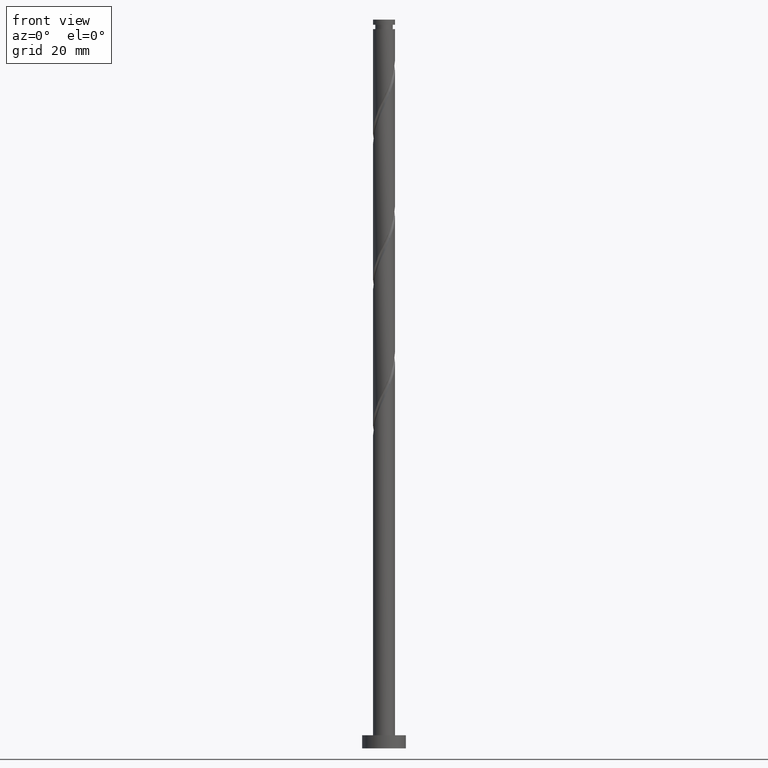
[diagram: clean part render]
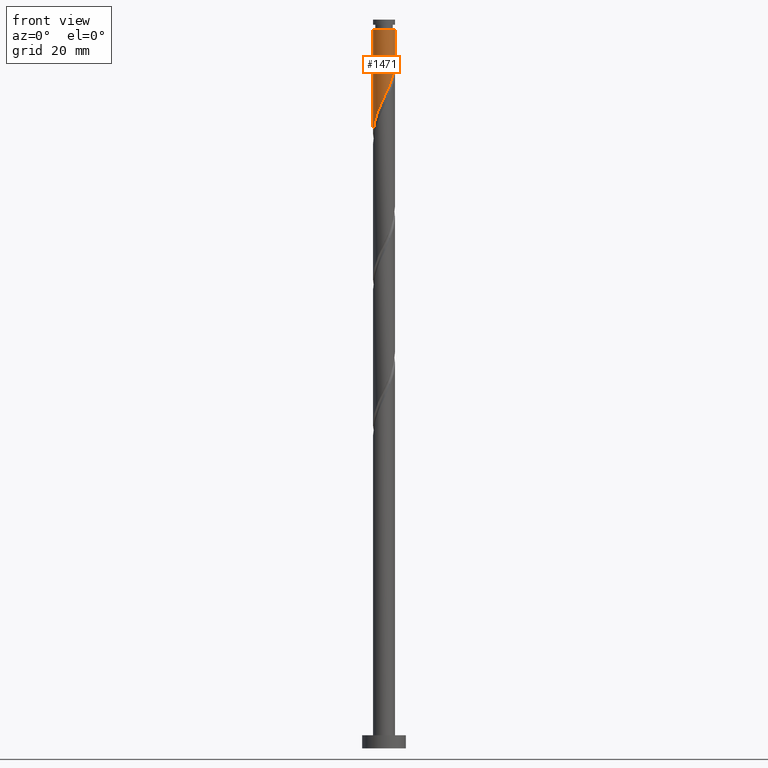
[diagram: same view with one face highlighted and labeled with its STEP entity id]
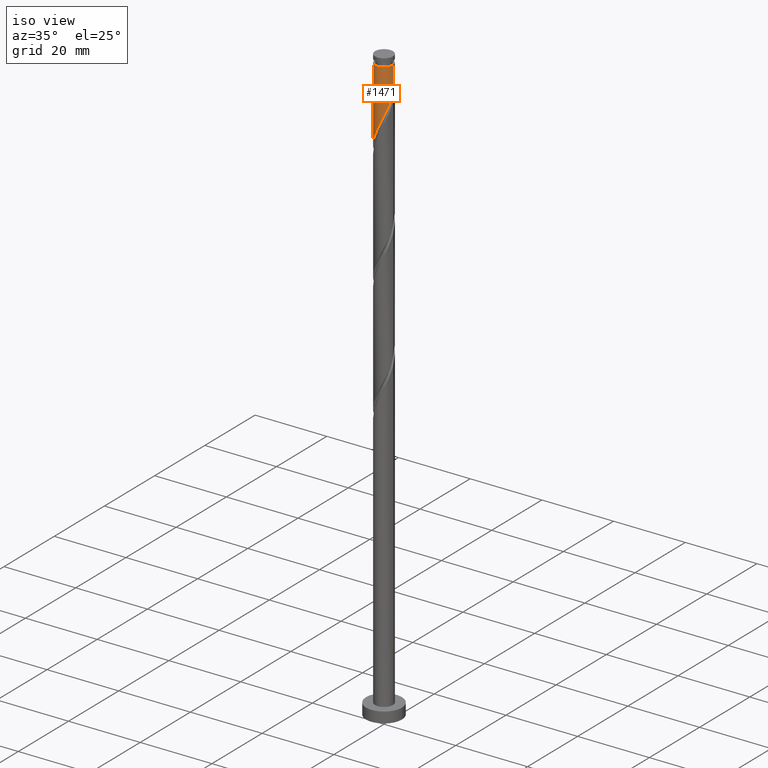
[diagram: same view with one face highlighted and labeled with its STEP entity id]
A machine part, front view. The second image highlights one B-rep face of the part: STEP entity #1471.
A second angle (iso view) of the same face is appended — the face is thin or edge-on in the first view.
In plain terms, the highlighted cylindrical surface (edge-blend (fillet) strip) has radius 2.5 mm, axis along (-0, -0, -1).
Its self-contained STEP definition (entity closure, byte-faithful):
#91 = DIRECTION ( 'NONE',  ( -0.000000000000000000, -0.000000000000000000, -1.000000000000000000 ) ) ;
#101 = CARTESIAN_POINT ( 'NONE',  ( -1.655842198490352413, -1.873015379995219165, 144.8865111185619980 ) ) ;
#120 = CARTESIAN_POINT ( 'NONE',  ( -0.1749450994641909840, -2.515496290581584304, 148.3587333407842834 ) ) ;
#140 = VECTOR ( 'NONE', #1259, 1000.000000000000000 ) ;
#241 = CARTESIAN_POINT ( 'NONE',  ( 2.500000000000000888, -0.2512594538148008039, 156.5277625156939791 ) ) ;
#253 = CARTESIAN_POINT ( 'NONE',  ( 2.091011141037078858, -1.409255045694377539, 153.9142888963398548 ) ) ;
#316 = LINE ( 'NONE', #837, #140 ) ;
#381 = CARTESIAN_POINT ( 'NONE',  ( -2.495279123588685977, -0.1535646293339484048, 140.7198444518953124 ) ) ;
#418 =( BOUNDED_CURVE ( )  B_SPLINE_CURVE ( 2, ( #1172, #241, #627, #1049, #1602, #253, #503, #1193, #1575, #1594, #889, #517, #1060, #120, #1430, #1035, #661, #1438, #101, #1711, #789, #881, #1567, #617, #381, #745, #1202 ),
 .UNSPECIFIED., .F., .T. ) 
 B_SPLINE_CURVE_WITH_KNOTS ( ( 3, 2, 2, 2, 2, 2, 2, 2, 2, 2, 2, 2, 2, 3 ),
 ( 0.3045317669814461836, 0.3125000000000000000, 0.3229166666666666852, 0.3333333333333333148, 0.3437500000000000000, 0.3541666666666666852, 0.3645833333333333148, 0.3750000000000000000, 0.3854166666666666852, 0.3958333333333333148, 0.4062500000000000000, 0.4166666666666666852, 0.4270833333333333148, 0.4295317669814459616 ),
 .UNSPECIFIED. ) 
 CURVE ( )  GEOMETRIC_REPRESENTATION_ITEM ( )  RATIONAL_B_SPLINE_CURVE ( ( 0.9062941362546423907, 0.9031415850403463619, 0.9090909090909219392, 0.9013135103398401959, 0.9090909090909219392, 0.9013135103398401959, 0.9090909090909219392, 0.9013135103398401959, 0.9090909090909219392, 0.9013135103398401959, 0.9090909090909219392, 0.9013135103398401959, 0.9090909090909219392, 0.9013135103398401959, 0.9090909090909219392, 0.9013135103398401959, 0.9090909090909219392, 0.9013135103398401959, 0.9090909090909219392, 0.9013135103398401959, 0.9090909090909219392, 0.9013135103398401959, 0.9090909090909219392, 0.9013135103398401959, 0.9090909090909219392, 0.9072628343904158843, 0.9062941362546425017 ) ) 
 REPRESENTATION_ITEM ( '' )  );
#461 = VERTEX_POINT ( 'NONE', #1671 ) ;
#472 = CIRCLE ( 'NONE', #847, 2.499999999999992006 ) ;
#499 = VERTEX_POINT ( 'NONE', #1388 ) ;
#503 = CARTESIAN_POINT ( 'NONE',  ( 1.873015379995219165, -1.655842198490352857, 153.2198444518953693 ) ) ;
#517 = CARTESIAN_POINT ( 'NONE',  ( 0.4820743581320862114, -2.475061956595790758, 149.7476222296731407 ) ) ;
#564 = VECTOR ( 'NONE', #91, 1000.000000000000000 ) ;
#598 = DIRECTION ( 'NONE',  ( -0.000000000000000000, -0.000000000000000000, -1.000000000000000000 ) ) ;
#617 = CARTESIAN_POINT ( 'NONE',  ( -2.475061956595790758, -0.4820743581320868776, 141.4142888963397695 ) ) ;
#622 = ORIENTED_EDGE ( 'NONE', *, *, #680, .F. ) ;
#627 = CARTESIAN_POINT ( 'NONE',  ( 2.449999999999999289, -0.4974937185533103712, 155.9976222296731692 ) ) ;
#652 = EDGE_CURVE ( 'NONE', #499, #856, #1339, .T. ) ;
#661 = CARTESIAN_POINT ( 'NONE',  ( -1.114648691668402858, -2.237757425227747010, 146.2754000074509122 ) ) ;
#680 = EDGE_CURVE ( 'NONE', #856, #461, #418, .T. ) ;
#694 = CARTESIAN_POINT ( 'NONE',  ( 0.000000000000000000, 0.000000000000000000, 164.3309555630064551 ) ) ;
#704 = DIRECTION ( 'NONE',  ( -1.000000000000000000, 0.000000000000000000, 0.000000000000000000 ) ) ;
#712 = DIRECTION ( 'NONE',  ( -0.000000000000000000, -0.000000000000000000, -1.000000000000000000 ) ) ;
#745 = CARTESIAN_POINT ( 'NONE',  ( -2.499999999999998224, -0.07685487914419314448, 140.5576859062446715 ) ) ;
#776 = ORIENTED_EDGE ( 'NONE', *, *, #1378, .T. ) ;
#789 = CARTESIAN_POINT ( 'NONE',  ( -2.084192795893798689, -1.380630431920284007, 143.4976222296731407 ) ) ;
#837 = CARTESIAN_POINT ( 'NONE',  ( -2.500000000000000000, 0.000000000000000000, 166.5200000000000102 ) ) ;
#847 = AXIS2_PLACEMENT_3D ( 'NONE', #694, #598, #704 ) ;
#856 = VERTEX_POINT ( 'NONE', #871 ) ;
#860 = DIRECTION ( 'NONE',  ( -1.000000000000000000, 0.000000000000000000, 0.000000000000000000 ) ) ;
#871 = CARTESIAN_POINT ( 'NONE',  ( 2.499999999999999556, 1.443040198809341903E-15, 157.0611888848832223 ) ) ;
#881 = CARTESIAN_POINT ( 'NONE',  ( -2.265956240501270091, -1.106241244887207209, 142.8031777852287121 ) ) ;
#889 = CARTESIAN_POINT ( 'NONE',  ( 0.7941578015096470988, -2.370509098548529980, 150.4420666741175694 ) ) ;
#1003 = VERTEX_POINT ( 'NONE', #1046 ) ;
#1022 = ORIENTED_EDGE ( 'NONE', *, *, #652, .F. ) ;
#1035 = CARTESIAN_POINT ( 'NONE',  ( -0.8200423376424309518, -2.384503709418414719, 146.9698444518953124 ) ) ;
#1046 = CARTESIAN_POINT ( 'NONE',  ( -2.499999999999992006, 0.000000000000000000, 164.3309555630064551 ) ) ;
#1049 = CARTESIAN_POINT ( 'NONE',  ( 2.384503709418414275, -0.8200423376424319510, 155.3031777852287405 ) ) ;
#1060 = CARTESIAN_POINT ( 'NONE',  ( 0.1535646293339475721, -2.495279123588685977, 149.0531777852286268 ) ) ;
#1079 = AXIS2_PLACEMENT_3D ( 'NONE', #1658, #712, #860 ) ;
#1172 = CARTESIAN_POINT ( 'NONE',  ( 2.499999999999999556, 1.443040198809341903E-15, 157.0611888848831939 ) ) ;
#1193 = CARTESIAN_POINT ( 'NONE',  ( 1.655019618953360361, -1.902429351286328840, 152.5254000074509406 ) ) ;
#1202 = CARTESIAN_POINT ( 'NONE',  ( -2.499999999999998224, -5.570284705248495331E-15, 140.3945222182165082 ) ) ;
#1259 = DIRECTION ( 'NONE',  ( -0.000000000000000000, -0.000000000000000000, -1.000000000000000000 ) ) ;
#1319 = CARTESIAN_POINT ( 'NONE',  ( 2.500000000000000000, 3.061616997868383141E-16, 166.5200000000000102 ) ) ;
#1339 = LINE ( 'NONE', #1319, #564 ) ;
#1378 = EDGE_CURVE ( 'NONE', #1003, #461, #316, .T. ) ;
#1382 = FACE_OUTER_BOUND ( 'NONE', #1645, .T. ) ;
#1388 = CARTESIAN_POINT ( 'NONE',  ( 2.499999999999992006, 3.061616997868377718E-16, 164.3309555630064551 ) ) ;
#1420 = ORIENTED_EDGE ( 'NONE', *, *, #1431, .T. ) ;
#1430 = CARTESIAN_POINT ( 'NONE',  ( -0.4974937185533100381, -2.449999999999999289, 147.6642888963397979 ) ) ;
#1431 = EDGE_CURVE ( 'NONE', #499, #1003, #472, .T. ) ;
#1438 = CARTESIAN_POINT ( 'NONE',  ( -1.409255045694376873, -2.091011141037078858, 145.5809555630065120 ) ) ;
#1471 = ADVANCED_FACE ( 'NONE', ( #1382 ), #1664, .T. ) ;
#1567 = CARTESIAN_POINT ( 'NONE',  ( -2.370509098548529536, -0.7941578015096470988, 142.1087333407842550 ) ) ;
#1575 = CARTESIAN_POINT ( 'NONE',  ( 1.380630431920282897, -2.084192795893798689, 151.8309555630063983 ) ) ;
#1594 = CARTESIAN_POINT ( 'NONE',  ( 1.106241244887207209, -2.265956240501270091, 151.1365111185620265 ) ) ;
#1602 = CARTESIAN_POINT ( 'NONE',  ( 2.237757425227746122, -1.114648691668404634, 154.6087333407842550 ) ) ;
#1645 = EDGE_LOOP ( 'NONE', ( #1022, #1420, #776, #622 ) ) ;
#1658 = CARTESIAN_POINT ( 'NONE',  ( 0.000000000000000000, 0.000000000000000000, 166.5200000000000102 ) ) ;
#1664 = CYLINDRICAL_SURFACE ( 'NONE', #1079, 2.500000000000000000 ) ;
#1671 = CARTESIAN_POINT ( 'NONE',  ( -2.499999999999998668, -5.570284705248495331E-15, 140.3945222182165082 ) ) ;
#1711 = CARTESIAN_POINT ( 'NONE',  ( -1.902429351286329062, -1.655019618953360361, 144.1920666741175125 ) ) ;